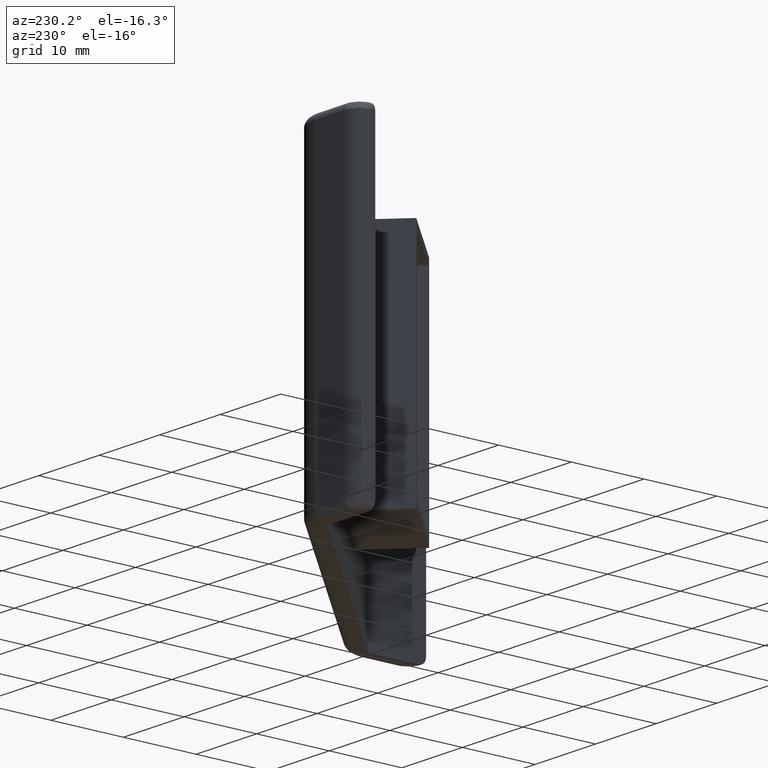
[diagram: clean part render]
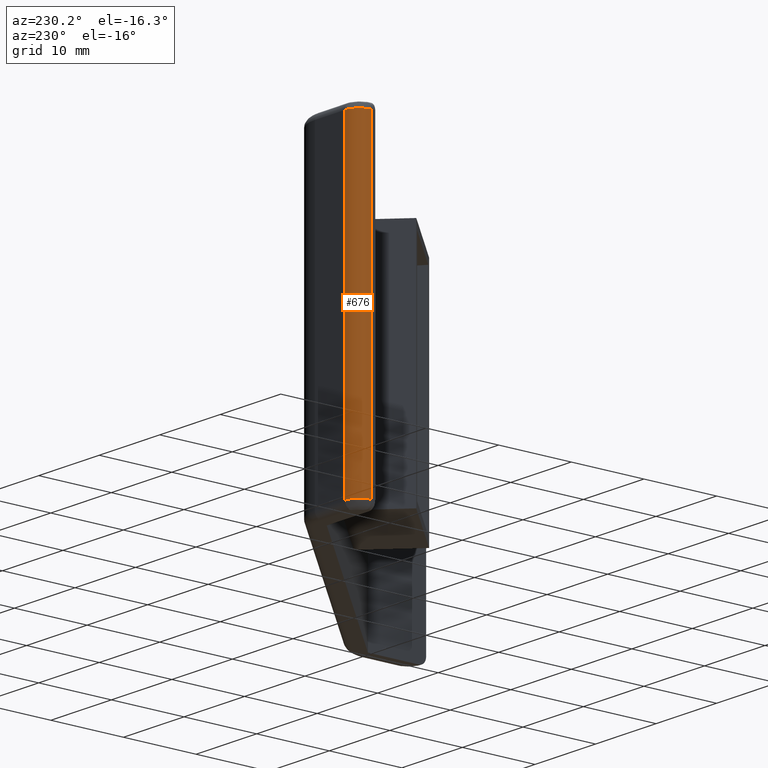
[diagram: same view with one face highlighted and labeled with its STEP entity id]
A machine part, auxiliary view. The second image highlights one B-rep face of the part: STEP entity #676.
In plain terms, the highlighted cylindrical surface (edge-blend (fillet) strip) has radius 2 mm, axis along (0, 0, -1).
Its self-contained STEP definition (entity closure, byte-faithful):
#27=CYLINDRICAL_SURFACE('',#734,2.);
#56=FACE_OUTER_BOUND('',#99,.T.);
#99=EDGE_LOOP('',(#526,#527,#528,#529));
#162=LINE('',#1082,#224);
#179=LINE('',#1125,#241);
#224=VECTOR('',#846,43.);
#241=VECTOR('',#883,43.);
#266=CIRCLE('',#735,2.);
#267=CIRCLE('',#736,2.);
#326=VERTEX_POINT('',#1079);
#327=VERTEX_POINT('',#1081);
#340=VERTEX_POINT('',#1118);
#343=VERTEX_POINT('',#1123);
#390=EDGE_CURVE('',#326,#327,#162,.T.);
#411=EDGE_CURVE('',#343,#340,#179,.T.);
#414=EDGE_CURVE('',#326,#340,#266,.T.);
#415=EDGE_CURVE('',#343,#327,#267,.T.);
#526=ORIENTED_EDGE('',*,*,#390,.F.);
#527=ORIENTED_EDGE('',*,*,#414,.T.);
#528=ORIENTED_EDGE('',*,*,#411,.F.);
#529=ORIENTED_EDGE('',*,*,#415,.T.);
#676=ADVANCED_FACE('',(#56),#27,.T.);
#734=AXIS2_PLACEMENT_3D('',#1129,#890,#891);
#735=AXIS2_PLACEMENT_3D('',#1130,#892,#893);
#736=AXIS2_PLACEMENT_3D('',#1131,#894,#895);
#846=DIRECTION('',(0.,0.,-1.));
#883=DIRECTION('',(0.,0.,1.));
#890=DIRECTION('center_axis',(0.,0.,-1.));
#891=DIRECTION('ref_axis',(-1.,0.,0.));
#892=DIRECTION('center_axis',(0.,0.,-1.));
#893=DIRECTION('ref_axis',(1.,0.,0.));
#894=DIRECTION('center_axis',(0.,0.,1.));
#895=DIRECTION('ref_axis',(1.,0.,0.));
#1079=CARTESIAN_POINT('',(3.42889779070266E-16,42.5,21.5));
#1081=CARTESIAN_POINT('',(3.42889779070266E-16,42.5,-21.5));
#1082=CARTESIAN_POINT('',(3.42889779070266E-16,42.5,22.5));
#1118=CARTESIAN_POINT('',(2.,44.5,21.5));
#1123=CARTESIAN_POINT('',(2.,44.5,-21.5));
#1125=CARTESIAN_POINT('',(2.,44.5,22.5));
#1129=CARTESIAN_POINT('Origin',(2.,42.5,22.5));
#1130=CARTESIAN_POINT('Origin',(2.,42.5,21.5));
#1131=CARTESIAN_POINT('Origin',(2.,42.5,-21.5));